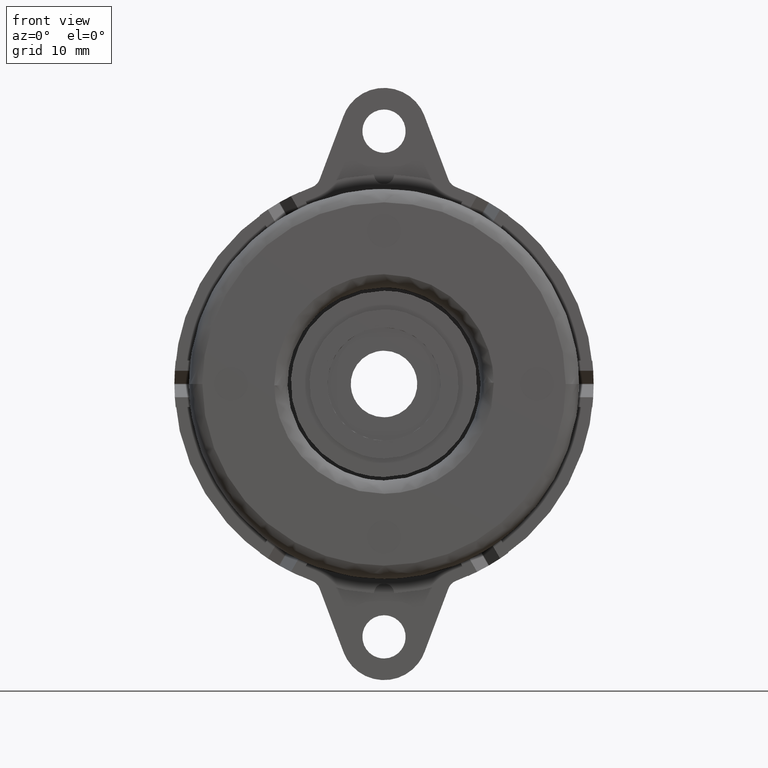
[diagram: clean part render]
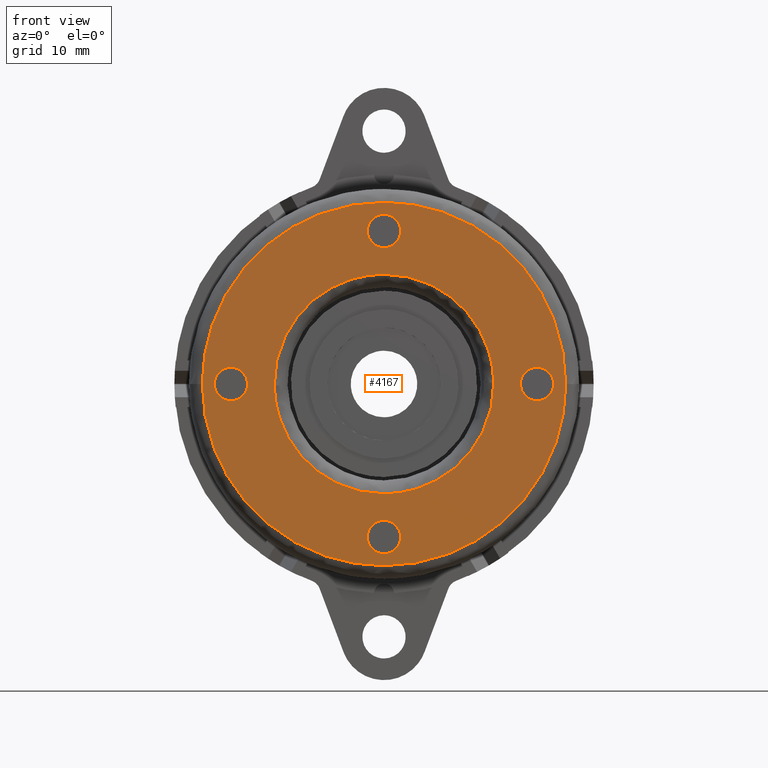
[diagram: same view with one face highlighted and labeled with its STEP entity id]
A machine part, front view. The second image highlights one B-rep face of the part: STEP entity #4167.
In plain terms, the highlighted face is a freeform B-spline surface patch.
Its self-contained STEP definition (entity closure, byte-faithful):
#2771=CARTESIAN_POINT('',(-2.495336996030768,-14.000000000000121,23.152621349227900));
#2772=VERTEX_POINT('',#2771);
#2778=CARTESIAN_POINT('',(0.0,-14.000000000000121,20.500000000000000));
#2779=VERTEX_POINT('',#2778);
#2780=CARTESIAN_POINT('',(-2.495336996030768,-14.000000000000119,23.152621349227900));
#2781=CARTESIAN_POINT('',(-2.500000000000000,-14.000000000000124,23.076381908442396));
#2782=CARTESIAN_POINT('',(-2.500000000000000,-14.000000000000121,23.0));
#2783=CARTESIAN_POINT('',(-2.500000000000000,-14.000000000000123,20.500000000000007));
#2784=CARTESIAN_POINT('',(0.0,-14.000000000000121,20.500000000000000));
#2792=(BOUNDED_CURVE()B_SPLINE_CURVE(2,(#2780,#2781,#2782,#2783,#2784),.UNSPECIFIED.,.F.,.U.)B_SPLINE_CURVE_WITH_KNOTS((3,2,3),(0.239332962214949,0.250000000000000,0.500000000000000),.UNSPECIFIED.)CURVE()GEOMETRIC_REPRESENTATION_ITEM()RATIONAL_B_SPLINE_CURVE((0.976072041615293,0.987502787871726,1.0,0.707106781186548,1.0))REPRESENTATION_ITEM(''));
#2793=EDGE_CURVE('',#2772,#2779,#2792,.T.);
#2795=CARTESIAN_POINT('',(2.495336996030767,-14.000000000000121,22.847378650772100));
#2796=VERTEX_POINT('',#2795);
#2797=CARTESIAN_POINT('',(0.0,-14.000000000000121,20.500000000000000));
#2798=CARTESIAN_POINT('',(2.351765166895278,-14.000000000000124,20.500000000000004));
#2799=CARTESIAN_POINT('',(2.495336996030768,-14.000000000000119,22.847378650772107));
#2807=(BOUNDED_CURVE()B_SPLINE_CURVE(2,(#2797,#2798,#2799),.UNSPECIFIED.,.F.,.U.)B_SPLINE_CURVE_WITH_KNOTS((3,3),(0.500000000000000,0.739332962214948),.UNSPECIFIED.)CURVE()GEOMETRIC_REPRESENTATION_ITEM()RATIONAL_B_SPLINE_CURVE((1.0,0.719603993314821,0.976072041615293))REPRESENTATION_ITEM(''));
#2808=EDGE_CURVE('',#2779,#2796,#2807,.T.);
#2840=CARTESIAN_POINT('',(0.0,-14.000000000000121,25.500000000000000));
#2841=VERTEX_POINT('',#2840);
#2842=CARTESIAN_POINT('',(2.495336996030767,-14.000000000000123,22.847378650772100));
#2843=CARTESIAN_POINT('',(2.500000000000000,-14.000000000000117,22.923618091557604));
#2844=CARTESIAN_POINT('',(2.500000000000000,-14.000000000000121,23.0));
#2845=CARTESIAN_POINT('',(2.500000000000000,-14.000000000000123,25.499999999999993));
#2846=CARTESIAN_POINT('',(0.0,-14.000000000000121,25.500000000000000));
#2854=(BOUNDED_CURVE()B_SPLINE_CURVE(2,(#2842,#2843,#2844,#2845,#2846),.UNSPECIFIED.,.F.,.U.)B_SPLINE_CURVE_WITH_KNOTS((3,2,3),(0.739332962214948,0.750000000000000,1.0),.UNSPECIFIED.)CURVE()GEOMETRIC_REPRESENTATION_ITEM()RATIONAL_B_SPLINE_CURVE((0.976072041615293,0.987502787871726,1.0,0.707106781186548,1.0))REPRESENTATION_ITEM(''));
#2855=EDGE_CURVE('',#2796,#2841,#2854,.T.);
#2857=CARTESIAN_POINT('',(0.0,-14.000000000000121,25.500000000000000));
#2858=CARTESIAN_POINT('',(-2.351765166895278,-14.000000000000124,25.499999999999993));
#2859=CARTESIAN_POINT('',(-2.495336996030768,-14.000000000000119,23.152621349227900));
#2867=(BOUNDED_CURVE()B_SPLINE_CURVE(2,(#2857,#2858,#2859),.UNSPECIFIED.,.F.,.U.)B_SPLINE_CURVE_WITH_KNOTS((3,3),(0.0,0.239332962214949),.UNSPECIFIED.)CURVE()GEOMETRIC_REPRESENTATION_ITEM()RATIONAL_B_SPLINE_CURVE((1.0,0.719603993314821,0.976072041615293))REPRESENTATION_ITEM(''));
#2868=EDGE_CURVE('',#2841,#2772,#2867,.T.);
#2893=CARTESIAN_POINT('',(-25.495336996030769,-14.000000000000121,0.152621349227897));
#2894=VERTEX_POINT('',#2893);
#2900=CARTESIAN_POINT('',(-23.0,-14.000000000000121,-2.500000000000000));
#2901=VERTEX_POINT('',#2900);
#2902=CARTESIAN_POINT('',(-25.495336996030769,-14.000000000000117,0.152621349227897));
#2903=CARTESIAN_POINT('',(-25.500000000000004,-14.000000000000124,0.076381908442397));
#2904=CARTESIAN_POINT('',(-25.500000000000000,-14.000000000000121,0.0));
#2905=CARTESIAN_POINT('',(-25.499999999999993,-14.000000000000123,-2.500000000000000));
#2906=CARTESIAN_POINT('',(-23.0,-14.000000000000121,-2.500000000000000));
#2914=(BOUNDED_CURVE()B_SPLINE_CURVE(2,(#2902,#2903,#2904,#2905,#2906),.UNSPECIFIED.,.F.,.U.)B_SPLINE_CURVE_WITH_KNOTS((3,2,3),(0.239332962214949,0.250000000000000,0.500000000000000),.UNSPECIFIED.)CURVE()GEOMETRIC_REPRESENTATION_ITEM()RATIONAL_B_SPLINE_CURVE((0.976072041615293,0.987502787871726,1.0,0.707106781186548,1.0))REPRESENTATION_ITEM(''));
#2915=EDGE_CURVE('',#2894,#2901,#2914,.T.);
#2917=CARTESIAN_POINT('',(-20.504663003969231,-14.000000000000121,-0.152621349227897));
#2918=VERTEX_POINT('',#2917);
#2919=CARTESIAN_POINT('',(-23.0,-14.000000000000121,-2.500000000000000));
#2920=CARTESIAN_POINT('',(-20.648234833104720,-14.000000000000124,-2.499999999999999));
#2921=CARTESIAN_POINT('',(-20.504663003969235,-14.000000000000119,-0.152621349227897));
#2929=(BOUNDED_CURVE()B_SPLINE_CURVE(2,(#2919,#2920,#2921),.UNSPECIFIED.,.F.,.U.)B_SPLINE_CURVE_WITH_KNOTS((3,3),(0.500000000000000,0.739332962214948),.UNSPECIFIED.)CURVE()GEOMETRIC_REPRESENTATION_ITEM()RATIONAL_B_SPLINE_CURVE((1.0,0.719603993314821,0.976072041615293))REPRESENTATION_ITEM(''));
#2930=EDGE_CURVE('',#2901,#2918,#2929,.T.);
#2962=CARTESIAN_POINT('',(-23.0,-14.000000000000121,2.500000000000000));
#2963=VERTEX_POINT('',#2962);
#2964=CARTESIAN_POINT('',(-20.504663003969235,-14.000000000000119,-0.152621349227897));
#2965=CARTESIAN_POINT('',(-20.500000000000004,-14.000000000000124,-0.076381908442398));
#2966=CARTESIAN_POINT('',(-20.500000000000000,-14.000000000000121,0.0));
#2967=CARTESIAN_POINT('',(-20.500000000000007,-14.000000000000123,2.500000000000000));
#2968=CARTESIAN_POINT('',(-23.0,-14.000000000000121,2.500000000000000));
#2976=(BOUNDED_CURVE()B_SPLINE_CURVE(2,(#2964,#2965,#2966,#2967,#2968),.UNSPECIFIED.,.F.,.U.)B_SPLINE_CURVE_WITH_KNOTS((3,2,3),(0.739332962214948,0.750000000000000,1.0),.UNSPECIFIED.)CURVE()GEOMETRIC_REPRESENTATION_ITEM()RATIONAL_B_SPLINE_CURVE((0.976072041615293,0.987502787871726,1.0,0.707106781186548,1.0))REPRESENTATION_ITEM(''));
#2977=EDGE_CURVE('',#2918,#2963,#2976,.T.);
#2979=CARTESIAN_POINT('',(-23.0,-14.000000000000121,2.500000000000000));
#2980=CARTESIAN_POINT('',(-25.351765166895277,-14.000000000000124,2.499999999999999));
#2981=CARTESIAN_POINT('',(-25.495336996030769,-14.000000000000117,0.152621349227897));
#2989=(BOUNDED_CURVE()B_SPLINE_CURVE(2,(#2979,#2980,#2981),.UNSPECIFIED.,.F.,.U.)B_SPLINE_CURVE_WITH_KNOTS((3,3),(0.0,0.239332962214949),.UNSPECIFIED.)CURVE()GEOMETRIC_REPRESENTATION_ITEM()RATIONAL_B_SPLINE_CURVE((1.0,0.719603993314821,0.976072041615293))REPRESENTATION_ITEM(''));
#2990=EDGE_CURVE('',#2963,#2894,#2989,.T.);
#3015=CARTESIAN_POINT('',(20.504663003969231,-14.000000000000121,0.152601349227890));
#3016=VERTEX_POINT('',#3015);
#3022=CARTESIAN_POINT('',(23.0,-14.000000000000121,-2.500020000000006));
#3023=VERTEX_POINT('',#3022);
#3024=CARTESIAN_POINT('',(20.504663003969231,-14.000000000000115,0.152601349227890));
#3025=CARTESIAN_POINT('',(20.500000000000000,-14.000000000000123,0.076361908442391));
#3026=CARTESIAN_POINT('',(20.500000000000000,-14.000000000000121,-0.000020000000006));
#3027=CARTESIAN_POINT('',(20.500000000000007,-14.000000000000123,-2.500020000000006));
#3028=CARTESIAN_POINT('',(23.0,-14.000000000000121,-2.500020000000006));
#3036=(BOUNDED_CURVE()B_SPLINE_CURVE(2,(#3024,#3025,#3026,#3027,#3028),.UNSPECIFIED.,.F.,.U.)B_SPLINE_CURVE_WITH_KNOTS((3,2,3),(0.239332962214949,0.250000000000000,0.500000000000000),.UNSPECIFIED.)CURVE()GEOMETRIC_REPRESENTATION_ITEM()RATIONAL_B_SPLINE_CURVE((0.976072041615293,0.987502787871726,1.0,0.707106781186548,1.0))REPRESENTATION_ITEM(''));
#3037=EDGE_CURVE('',#3016,#3023,#3036,.T.);
#3039=CARTESIAN_POINT('',(25.495336996030769,-14.000000000000121,-0.152641349227902));
#3040=VERTEX_POINT('',#3039);
#3041=CARTESIAN_POINT('',(23.0,-14.000000000000121,-2.500020000000006));
#3042=CARTESIAN_POINT('',(25.351765166895280,-14.000000000000128,-2.500020000000006));
#3043=CARTESIAN_POINT('',(25.495336996030762,-14.000000000000123,-0.152641349227902));
#3051=(BOUNDED_CURVE()B_SPLINE_CURVE(2,(#3041,#3042,#3043),.UNSPECIFIED.,.F.,.U.)B_SPLINE_CURVE_WITH_KNOTS((3,3),(0.500000000000000,0.739332962214949),.UNSPECIFIED.)CURVE()GEOMETRIC_REPRESENTATION_ITEM()RATIONAL_B_SPLINE_CURVE((1.0,0.719603993314821,0.976072041615293))REPRESENTATION_ITEM(''));
#3052=EDGE_CURVE('',#3023,#3040,#3051,.T.);
#3084=CARTESIAN_POINT('',(23.0,-14.000000000000121,2.499979999999994));
#3085=VERTEX_POINT('',#3084);
#3086=CARTESIAN_POINT('',(25.495336996030762,-14.000000000000123,-0.152641349227902));
#3087=CARTESIAN_POINT('',(25.500000000000000,-14.000000000000123,-0.076401908442403));
#3088=CARTESIAN_POINT('',(25.500000000000000,-14.000000000000121,-0.000020000000006));
#3089=CARTESIAN_POINT('',(25.499999999999993,-14.000000000000123,2.499979999999994));
#3090=CARTESIAN_POINT('',(23.0,-14.000000000000121,2.499979999999994));
#3098=(BOUNDED_CURVE()B_SPLINE_CURVE(2,(#3086,#3087,#3088,#3089,#3090),.UNSPECIFIED.,.F.,.U.)B_SPLINE_CURVE_WITH_KNOTS((3,2,3),(0.739332962214949,0.750000000000000,1.0),.UNSPECIFIED.)CURVE()GEOMETRIC_REPRESENTATION_ITEM()RATIONAL_B_SPLINE_CURVE((0.976072041615293,0.987502787871726,1.0,0.707106781186548,1.0))REPRESENTATION_ITEM(''));
#3099=EDGE_CURVE('',#3040,#3085,#3098,.T.);
#3101=CARTESIAN_POINT('',(23.0,-14.000000000000121,2.499979999999994));
#3102=CARTESIAN_POINT('',(20.648234833104723,-14.000000000000128,2.499979999999993));
#3103=CARTESIAN_POINT('',(20.504663003969231,-14.000000000000115,0.152601349227890));
#3111=(BOUNDED_CURVE()B_SPLINE_CURVE(2,(#3101,#3102,#3103),.UNSPECIFIED.,.F.,.U.)B_SPLINE_CURVE_WITH_KNOTS((3,3),(0.0,0.239332962214949),.UNSPECIFIED.)CURVE()GEOMETRIC_REPRESENTATION_ITEM()RATIONAL_B_SPLINE_CURVE((1.0,0.719603993314821,0.976072041615293))REPRESENTATION_ITEM(''));
#3112=EDGE_CURVE('',#3085,#3016,#3111,.T.);
#3137=CARTESIAN_POINT('',(-2.495336996030768,-14.000000000000121,-22.847378650772100));
#3138=VERTEX_POINT('',#3137);
#3144=CARTESIAN_POINT('',(0.0,-14.000000000000121,-25.500000000000000));
#3145=VERTEX_POINT('',#3144);
#3146=CARTESIAN_POINT('',(-2.495336996030769,-14.000000000000123,-22.847378650772114));
#3147=CARTESIAN_POINT('',(-2.500000000000000,-14.000000000000121,-22.923618091557607));
#3148=CARTESIAN_POINT('',(-2.500000000000000,-14.000000000000121,-23.0));
#3149=CARTESIAN_POINT('',(-2.500000000000000,-14.000000000000123,-25.499999999999993));
#3150=CARTESIAN_POINT('',(0.0,-14.000000000000121,-25.500000000000000));
#3158=(BOUNDED_CURVE()B_SPLINE_CURVE(2,(#3146,#3147,#3148,#3149,#3150),.UNSPECIFIED.,.F.,.U.)B_SPLINE_CURVE_WITH_KNOTS((3,2,3),(0.239332962214949,0.250000000000000,0.500000000000000),.UNSPECIFIED.)CURVE()GEOMETRIC_REPRESENTATION_ITEM()RATIONAL_B_SPLINE_CURVE((0.976072041615294,0.987502787871726,1.0,0.707106781186548,1.0))REPRESENTATION_ITEM(''));
#3159=EDGE_CURVE('',#3138,#3145,#3158,.T.);
#3161=CARTESIAN_POINT('',(2.495336996030768,-14.000000000000121,-23.152621349227889));
#3162=VERTEX_POINT('',#3161);
#3163=CARTESIAN_POINT('',(0.0,-14.000000000000121,-25.500000000000000));
#3164=CARTESIAN_POINT('',(2.351765166895280,-14.000000000000117,-25.500000000000000));
#3165=CARTESIAN_POINT('',(2.495336996030769,-14.000000000000123,-23.152621349227889));
#3173=(BOUNDED_CURVE()B_SPLINE_CURVE(2,(#3163,#3164,#3165),.UNSPECIFIED.,.F.,.U.)B_SPLINE_CURVE_WITH_KNOTS((3,3),(0.500000000000000,0.739332962214949),.UNSPECIFIED.)CURVE()GEOMETRIC_REPRESENTATION_ITEM()RATIONAL_B_SPLINE_CURVE((1.0,0.719603993314821,0.976072041615294))REPRESENTATION_ITEM(''));
#3174=EDGE_CURVE('',#3145,#3162,#3173,.T.);
#3206=CARTESIAN_POINT('',(0.0,-14.000000000000121,-20.500000000000000));
#3207=VERTEX_POINT('',#3206);
#3208=CARTESIAN_POINT('',(2.495336996030769,-14.000000000000123,-23.152621349227889));
#3209=CARTESIAN_POINT('',(2.500000000000000,-14.000000000000121,-23.076381908442400));
#3210=CARTESIAN_POINT('',(2.500000000000000,-14.000000000000121,-23.0));
#3211=CARTESIAN_POINT('',(2.500000000000000,-14.000000000000123,-20.500000000000007));
#3212=CARTESIAN_POINT('',(0.0,-14.000000000000121,-20.500000000000000));
#3220=(BOUNDED_CURVE()B_SPLINE_CURVE(2,(#3208,#3209,#3210,#3211,#3212),.UNSPECIFIED.,.F.,.U.)B_SPLINE_CURVE_WITH_KNOTS((3,2,3),(0.739332962214949,0.750000000000000,1.0),.UNSPECIFIED.)CURVE()GEOMETRIC_REPRESENTATION_ITEM()RATIONAL_B_SPLINE_CURVE((0.976072041615294,0.987502787871726,1.0,0.707106781186548,1.0))REPRESENTATION_ITEM(''));
#3221=EDGE_CURVE('',#3162,#3207,#3220,.T.);
#3223=CARTESIAN_POINT('',(0.0,-14.000000000000121,-20.500000000000000));
#3224=CARTESIAN_POINT('',(-2.351765166895280,-14.000000000000130,-20.500000000000011));
#3225=CARTESIAN_POINT('',(-2.495336996030768,-14.000000000000123,-22.847378650772107));
#3233=(BOUNDED_CURVE()B_SPLINE_CURVE(2,(#3223,#3224,#3225),.UNSPECIFIED.,.F.,.U.)B_SPLINE_CURVE_WITH_KNOTS((3,3),(0.0,0.239332962214949),.UNSPECIFIED.)CURVE()GEOMETRIC_REPRESENTATION_ITEM()RATIONAL_B_SPLINE_CURVE((1.0,0.719603993314821,0.976072041615293))REPRESENTATION_ITEM(''));
#3234=EDGE_CURVE('',#3207,#3138,#3233,.T.);
#3940=CARTESIAN_POINT('',(-16.498698227778920,-14.000000000000121,-0.207339670861163));
#3941=VERTEX_POINT('',#3940);
#3955=CARTESIAN_POINT('',(0.0,-14.000000000000121,-16.500001000000001));
#3956=VERTEX_POINT('',#3955);
#3957=CARTESIAN_POINT('',(0.0,-14.000000000000121,-16.500001000000001));
#3958=CARTESIAN_POINT('',(-16.293947829995830,-14.000000000000123,-16.500000999990569));
#3959=CARTESIAN_POINT('',(-16.498698227778920,-14.000000000000119,-0.207339670861162));
#3967=(BOUNDED_CURVE()B_SPLINE_CURVE(2,(#3957,#3958,#3959),.UNSPECIFIED.,.F.,.U.)B_SPLINE_CURVE_WITH_KNOTS((3,3),(0.500000000000000,0.747784295919184),.UNSPECIFIED.)CURVE()GEOMETRIC_REPRESENTATION_ITEM()RATIONAL_B_SPLINE_CURVE((1.0,0.709702639987221,0.994854295638157))REPRESENTATION_ITEM(''));
#3968=EDGE_CURVE('',#3956,#3941,#3967,.T.);
#3970=CARTESIAN_POINT('',(16.498698227778931,-14.000000000000121,0.207339670861170));
#3971=VERTEX_POINT('',#3970);
#3972=CARTESIAN_POINT('',(16.498698227778931,-14.000000000000121,0.207339670861169));
#3973=CARTESIAN_POINT('',(16.500000998502582,-14.000000000000117,0.103673928249990));
#3974=CARTESIAN_POINT('',(16.500000998507289,-14.000000000000121,-1.875751E-011));
#3975=CARTESIAN_POINT('',(16.500000999258337,-14.000000000000123,-16.500001000009327));
#3976=CARTESIAN_POINT('',(0.0,-14.000000000000121,-16.500001000000001));
#3984=(BOUNDED_CURVE()B_SPLINE_CURVE(2,(#3972,#3973,#3974,#3975,#3976),.UNSPECIFIED.,.F.,.U.)B_SPLINE_CURVE_WITH_KNOTS((3,2,3),(0.247784295919184,0.250000000000000,0.500000000000000),.UNSPECIFIED.)CURVE()GEOMETRIC_REPRESENTATION_ITEM()RATIONAL_B_SPLINE_CURVE((0.994854295638156,0.997404141199327,1.0,0.707106781186548,1.0))REPRESENTATION_ITEM(''));
#3985=EDGE_CURVE('',#3971,#3956,#3984,.T.);
#4034=CARTESIAN_POINT('',(0.0,-14.000000000000121,16.500001000000001));
#4035=VERTEX_POINT('',#4034);
#4036=CARTESIAN_POINT('',(0.0,-14.000000000000121,16.500001000000001));
#4037=CARTESIAN_POINT('',(16.293947829995830,-14.000000000000121,16.500000999990565));
#4038=CARTESIAN_POINT('',(16.498698227778924,-14.000000000000123,0.207339670861169));
#4046=(BOUNDED_CURVE()B_SPLINE_CURVE(2,(#4036,#4037,#4038),.UNSPECIFIED.,.F.,.U.)B_SPLINE_CURVE_WITH_KNOTS((3,3),(0.0,0.247784295919184),.UNSPECIFIED.)CURVE()GEOMETRIC_REPRESENTATION_ITEM()RATIONAL_B_SPLINE_CURVE((1.0,0.709702639987221,0.994854295638156))REPRESENTATION_ITEM(''));
#4047=EDGE_CURVE('',#4035,#3971,#4046,.T.);
#4049=CARTESIAN_POINT('',(-16.498698227778920,-14.000000000000119,-0.207339670861162));
#4050=CARTESIAN_POINT('',(-16.500000998502582,-14.000000000000126,-0.103673928249984));
#4051=CARTESIAN_POINT('',(-16.500000998507300,-14.000000000000121,1.876185E-011));
#4052=CARTESIAN_POINT('',(-16.500000999258337,-14.000000000000123,16.500001000009327));
#4053=CARTESIAN_POINT('',(0.0,-14.000000000000121,16.500001000000001));
#4061=(BOUNDED_CURVE()B_SPLINE_CURVE(2,(#4049,#4050,#4051,#4052,#4053),.UNSPECIFIED.,.F.,.U.)B_SPLINE_CURVE_WITH_KNOTS((3,2,3),(0.747784295919184,0.750000000000000,1.0),.UNSPECIFIED.)CURVE()GEOMETRIC_REPRESENTATION_ITEM()RATIONAL_B_SPLINE_CURVE((0.994854295638157,0.997404141199327,1.0,0.707106781186548,1.0))REPRESENTATION_ITEM(''));
#4062=EDGE_CURVE('',#3941,#4035,#4061,.T.);
#4070=CARTESIAN_POINT('',(-30.027258895368821,-14.000000000000121,-30.027258895174651));
#4071=CARTESIAN_POINT('',(-30.027258895368821,-14.000000000000121,30.027260359660229));
#4072=CARTESIAN_POINT('',(30.027260359854409,-14.000000000000121,-30.027258895174651));
#4073=CARTESIAN_POINT('',(30.027260359854409,-14.000000000000121,30.027260359660229));
#4074=B_SPLINE_SURFACE_WITH_KNOTS('',1,1,((#4070,#4072),(#4071,#4073)),.UNSPECIFIED.,.F.,.F.,.U.,(2,2),(2,2),(0.0,60.054519254834872),(0.0,60.054519255223227),.UNSPECIFIED.);
#4075=CARTESIAN_POINT('',(0.0,-14.000000000000121,27.299990000000001));
#4076=VERTEX_POINT('',#4075);
#4077=CARTESIAN_POINT('',(-27.299990000176539,-14.000000000000121,-1.770490E-015));
#4078=VERTEX_POINT('',#4077);
#4079=CARTESIAN_POINT('',(0.0,-14.000000000000121,27.299990000000001));
#4080=CARTESIAN_POINT('',(-27.299990000088272,-14.000000000000119,27.299990000000012));
#4081=CARTESIAN_POINT('',(-27.299990000176539,-14.000000000000121,-1.770490E-015));
#4089=(BOUNDED_CURVE()B_SPLINE_CURVE(2,(#4079,#4080,#4081),.UNSPECIFIED.,.F.,.U.)B_SPLINE_CURVE_WITH_KNOTS((3,3),(0.0,0.250000000000000),.UNSPECIFIED.)CURVE()GEOMETRIC_REPRESENTATION_ITEM()RATIONAL_B_SPLINE_CURVE((1.0,0.707106781186547,1.0))REPRESENTATION_ITEM(''));
#4090=EDGE_CURVE('',#4076,#4078,#4089,.T.);
#4091=ORIENTED_EDGE('',*,*,#4090,.T.);
#4092=CARTESIAN_POINT('',(0.0,-14.000000000000121,-27.299990000000001));
#4093=VERTEX_POINT('',#4092);
#4094=CARTESIAN_POINT('',(-27.299990000176539,-14.000000000000121,-1.770490E-015));
#4095=CARTESIAN_POINT('',(-27.299990000088268,-14.000000000000123,-27.299990000000008));
#4096=CARTESIAN_POINT('',(0.0,-14.000000000000121,-27.299990000000001));
#4104=(BOUNDED_CURVE()B_SPLINE_CURVE(2,(#4094,#4095,#4096),.UNSPECIFIED.,.F.,.U.)B_SPLINE_CURVE_WITH_KNOTS((3,3),(0.250000000000000,0.500000000000000),.UNSPECIFIED.)CURVE()GEOMETRIC_REPRESENTATION_ITEM()RATIONAL_B_SPLINE_CURVE((1.0,0.707106781186547,1.0))REPRESENTATION_ITEM(''));
#4105=EDGE_CURVE('',#4078,#4093,#4104,.T.);
#4106=ORIENTED_EDGE('',*,*,#4105,.T.);
#4107=CARTESIAN_POINT('',(27.299990000176539,-14.000000000000121,1.770490E-015));
#4108=VERTEX_POINT('',#4107);
#4109=CARTESIAN_POINT('',(0.0,-14.000000000000121,-27.299990000000001));
#4110=CARTESIAN_POINT('',(27.299990000088268,-14.000000000000123,-27.299990000000008));
#4111=CARTESIAN_POINT('',(27.299990000176539,-14.000000000000121,1.770490E-015));
#4119=(BOUNDED_CURVE()B_SPLINE_CURVE(2,(#4109,#4110,#4111),.UNSPECIFIED.,.F.,.U.)B_SPLINE_CURVE_WITH_KNOTS((3,3),(0.500000000000000,0.750000000000000),.UNSPECIFIED.)CURVE()GEOMETRIC_REPRESENTATION_ITEM()RATIONAL_B_SPLINE_CURVE((1.0,0.707106781186547,1.0))REPRESENTATION_ITEM(''));
#4120=EDGE_CURVE('',#4093,#4108,#4119,.T.);
#4121=ORIENTED_EDGE('',*,*,#4120,.T.);
#4122=CARTESIAN_POINT('',(27.299990000176539,-14.000000000000121,1.770490E-015));
#4123=CARTESIAN_POINT('',(27.299990000088268,-14.000000000000123,27.299990000000008));
#4124=CARTESIAN_POINT('',(0.0,-14.000000000000121,27.299990000000001));
#4132=(BOUNDED_CURVE()B_SPLINE_CURVE(2,(#4122,#4123,#4124),.UNSPECIFIED.,.F.,.U.)B_SPLINE_CURVE_WITH_KNOTS((3,3),(0.750000000000000,1.0),.UNSPECIFIED.)CURVE()GEOMETRIC_REPRESENTATION_ITEM()RATIONAL_B_SPLINE_CURVE((1.0,0.707106781186547,1.0))REPRESENTATION_ITEM(''));
#4133=EDGE_CURVE('',#4108,#4076,#4132,.T.);
#4134=ORIENTED_EDGE('',*,*,#4133,.T.);
#4135=EDGE_LOOP('',(#4091,#4106,#4121,#4134));
#4136=FACE_OUTER_BOUND('',#4135,.T.);
#4137=ORIENTED_EDGE('',*,*,#3968,.T.);
#4138=ORIENTED_EDGE('',*,*,#4062,.T.);
#4139=ORIENTED_EDGE('',*,*,#4047,.T.);
#4140=ORIENTED_EDGE('',*,*,#3985,.T.);
#4141=EDGE_LOOP('',(#4137,#4138,#4139,#4140));
#4142=FACE_BOUND('',#4141,.T.);
#4143=ORIENTED_EDGE('',*,*,#3174,.F.);
#4144=ORIENTED_EDGE('',*,*,#3159,.F.);
#4145=ORIENTED_EDGE('',*,*,#3234,.F.);
#4146=ORIENTED_EDGE('',*,*,#3221,.F.);
#4147=EDGE_LOOP('',(#4143,#4144,#4145,#4146));
#4148=FACE_BOUND('',#4147,.T.);
#4149=ORIENTED_EDGE('',*,*,#3052,.F.);
#4150=ORIENTED_EDGE('',*,*,#3037,.F.);
#4151=ORIENTED_EDGE('',*,*,#3112,.F.);
#4152=ORIENTED_EDGE('',*,*,#3099,.F.);
#4153=EDGE_LOOP('',(#4149,#4150,#4151,#4152));
#4154=FACE_BOUND('',#4153,.T.);
#4155=ORIENTED_EDGE('',*,*,#2930,.F.);
#4156=ORIENTED_EDGE('',*,*,#2915,.F.);
#4157=ORIENTED_EDGE('',*,*,#2990,.F.);
#4158=ORIENTED_EDGE('',*,*,#2977,.F.);
#4159=EDGE_LOOP('',(#4155,#4156,#4157,#4158));
#4160=FACE_BOUND('',#4159,.T.);
#4161=ORIENTED_EDGE('',*,*,#2808,.F.);
#4162=ORIENTED_EDGE('',*,*,#2793,.F.);
#4163=ORIENTED_EDGE('',*,*,#2868,.F.);
#4164=ORIENTED_EDGE('',*,*,#2855,.F.);
#4165=EDGE_LOOP('',(#4161,#4162,#4163,#4164));
#4166=FACE_BOUND('',#4165,.T.);
#4167=ADVANCED_FACE('',(#4136,#4142,#4148,#4154,#4160,#4166),#4074,.F.);